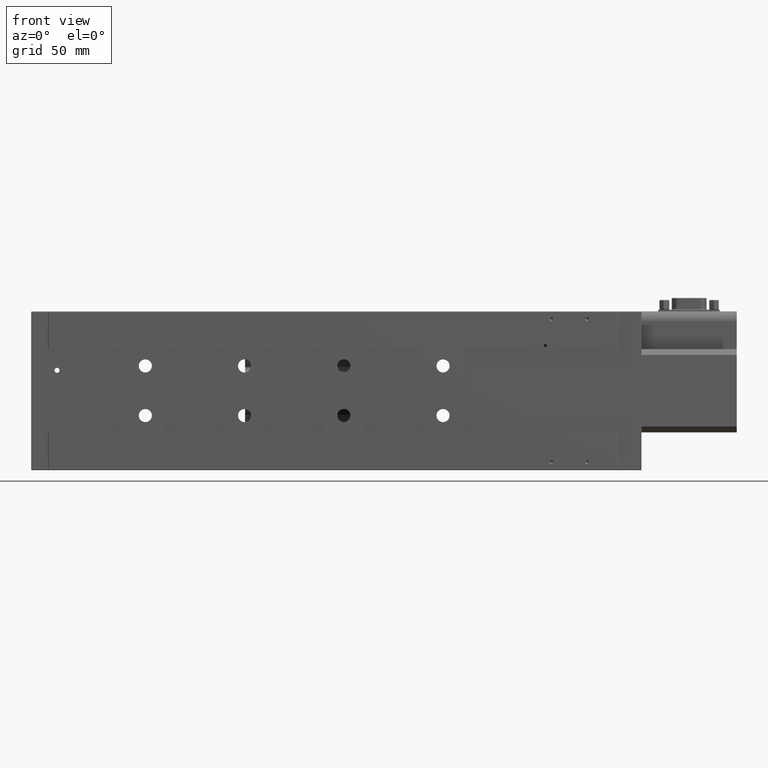
[diagram: clean part render]
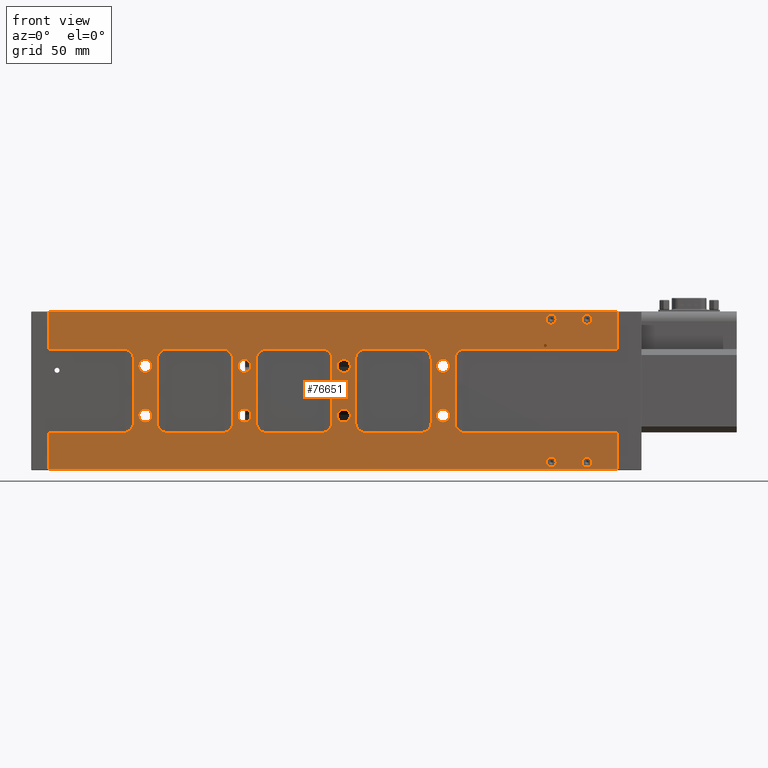
[diagram: same view with one face highlighted and labeled with its STEP entity id]
A machine part, front view. The second image highlights one B-rep face of the part: STEP entity #76651.
In plain terms, the highlighted planar face has unit normal (0, -1, 0).
Its self-contained STEP definition (entity closure, byte-faithful):
#32 = VERTEX_POINT ( 'NONE', #9758 ) ;
#176 = VECTOR ( 'NONE', #108767, 1000.000000000000000 ) ;
#337 = CARTESIAN_POINT ( 'NONE',  ( 107.5000000000000000, -3.081487911019577400E-030, -27.50000000000000000 ) ) ;
#714 = DIRECTION ( 'NONE',  ( 0.0000000000000000000, -0.0000000000000000000, -1.000000000000000000 ) ) ;
#882 = VERTEX_POINT ( 'NONE', #67677 ) ;
#955 = VERTEX_POINT ( 'NONE', #97747 ) ;
#971 = CARTESIAN_POINT ( 'NONE',  ( 168.4999999999999700, -3.081487911019577400E-030, -23.99999999999997900 ) ) ;
#1014 = LINE ( 'NONE', #15958, #30626 ) ;
#1209 = DIRECTION ( 'NONE',  ( 0.0000000000000000000, -1.000000000000000000, 0.0000000000000000000 ) ) ;
#1372 = CIRCLE ( 'NONE', #16752, 3.299999999999997200 ) ;
#2069 = DIRECTION ( 'NONE',  ( 0.0000000000000000000, 0.0000000000000000000, -1.000000000000000000 ) ) ;
#2505 = CARTESIAN_POINT ( 'NONE',  ( 63.50000000000000000, -3.081487911019577400E-030, -19.00000000000000400 ) ) ;
#2922 = CIRCLE ( 'NONE', #86232, 5.000000000000000900 ) ;
#3115 = CARTESIAN_POINT ( 'NONE',  ( 163.5000000000000000, -3.081487911019577400E-030, -23.99999999999997900 ) ) ;
#3352 = VERTEX_POINT ( 'NONE', #28502 ) ;
#3419 = CIRCLE ( 'NONE', #50613, 3.299999999999997200 ) ;
#3466 = VERTEX_POINT ( 'NONE', #87844 ) ;
#3620 = FACE_BOUND ( 'NONE', #116511, .T. ) ;
#3692 = CIRCLE ( 'NONE', #104261, 2.500000000000002200 ) ;
#3763 = EDGE_CURVE ( 'NONE', #55643, #70289, #113387, .T. ) ;
#3909 = CARTESIAN_POINT ( 'NONE',  ( 207.5000000000000300, -3.081487911019577400E-030, -30.79999999999999700 ) ) ;
#4244 = CIRCLE ( 'NONE', #72149, 4.999999999999997300 ) ;
#4245 = EDGE_CURVE ( 'NONE', #12464, #6634, #104402, .T. ) ;
#4493 = LINE ( 'NONE', #100578, #56324 ) ;
#4622 = CARTESIAN_POINT ( 'NONE',  ( 213.5000000000000300, -3.081487911019577400E-030, -61.00000000000002100 ) ) ;
#4814 = CARTESIAN_POINT ( 'NONE',  ( 279.9999999999999400, -2.696301922142130200E-030, -76.00000000000000000 ) ) ;
#5111 = CARTESIAN_POINT ( 'NONE',  ( 279.9999999999999400, -2.696301922142130200E-030, -4.000000000000003600 ) ) ;
#5503 = VECTOR ( 'NONE', #10503, 1000.000000000000000 ) ;
#5555 = AXIS2_PLACEMENT_3D ( 'NONE', #28528, #94088, #56595 ) ;
#6387 = LINE ( 'NONE', #108565, #63991 ) ;
#6406 = ORIENTED_EDGE ( 'NONE', *, *, #65200, .T. ) ;
#6521 = DIRECTION ( 'NONE',  ( 0.0000000000000000000, 0.0000000000000000000, 1.000000000000000000 ) ) ;
#6634 = VERTEX_POINT ( 'NONE', #66663 ) ;
#6667 = VECTOR ( 'NONE', #65018, 1000.000000000000000 ) ;
#6719 = EDGE_CURVE ( 'NONE', #19025, #67144, #122423, .T. ) ;
#6874 = AXIS2_PLACEMENT_3D ( 'NONE', #5111, #71163, #81880 ) ;
#7036 = EDGE_CURVE ( 'NONE', #64838, #38649, #51488, .T. ) ;
#7274 = VERTEX_POINT ( 'NONE', #3909 ) ;
#7400 = EDGE_CURVE ( 'NONE', #112690, #95032, #61620, .T. ) ;
#7713 = VECTOR ( 'NONE', #68785, 1000.000000000000000 ) ;
#7737 = EDGE_CURVE ( 'NONE', #112133, #50079, #23029, .T. ) ;
#8036 = CARTESIAN_POINT ( 'NONE',  ( 168.5000000000000000, -3.081487911019577400E-030, -56.00000000000002100 ) ) ;
#8140 = EDGE_CURVE ( 'NONE', #882, #955, #61270, .T. ) ;
#8500 = LINE ( 'NONE', #104568, #5503 ) ;
#8533 = VERTEX_POINT ( 'NONE', #91515 ) ;
#8903 = CARTESIAN_POINT ( 'NONE',  ( 163.5000000000000000, -3.081487911019577400E-030, -18.99999999999998200 ) ) ;
#9434 = EDGE_CURVE ( 'NONE', #20354, #16555, #27585, .T. ) ;
#9439 = CARTESIAN_POINT ( 'NONE',  ( 151.9999999999999700, -3.081487911019577400E-030, -40.00000000000000000 ) ) ;
#9505 = CARTESIAN_POINT ( 'NONE',  ( 46.49999999999998600, -3.081487911019577400E-030, -61.00000000000002100 ) ) ;
#9560 = CIRCLE ( 'NONE', #68338, 3.299999999999997200 ) ;
#9635 = VERTEX_POINT ( 'NONE', #73068 ) ;
#9758 = CARTESIAN_POINT ( 'NONE',  ( 279.9999999999999400, -2.696301922142130200E-030, -1.500000000000001300 ) ) ;
#10085 = AXIS2_PLACEMENT_3D ( 'NONE', #43215, #15453, #24992 ) ;
#10151 = CARTESIAN_POINT ( 'NONE',  ( 218.5000000000000000, -3.081487911019577400E-030, -23.99999999999996800 ) ) ;
#10186 = EDGE_LOOP ( 'NONE', ( #23263, #108722 ) ) ;
#10446 = VECTOR ( 'NONE', #78032, 1000.000000000000000 ) ;
#10479 = DIRECTION ( 'NONE',  ( 0.0000000000000000000, 0.0000000000000000000, -1.000000000000000000 ) ) ;
#10503 = DIRECTION ( 'NONE',  ( -1.652117596168385800E-016, -0.0000000000000000000, 1.000000000000000000 ) ) ;
#10614 = VERTEX_POINT ( 'NONE', #109845 ) ;
#10752 = CIRCLE ( 'NONE', #115056, 5.000000000000000900 ) ;
#10883 = EDGE_CURVE ( 'NONE', #35135, #99519, #16384, .T. ) ;
#11692 = EDGE_CURVE ( 'NONE', #32, #57868, #94175, .T. ) ;
#11882 = ORIENTED_EDGE ( 'NONE', *, *, #70848, .T. ) ;
#11949 = ORIENTED_EDGE ( 'NONE', *, *, #3763, .F. ) ;
#12322 = EDGE_CURVE ( 'NONE', #3466, #107722, #60713, .T. ) ;
#12431 = DIRECTION ( 'NONE',  ( -0.0000000000000000000, 1.000000000000000000, -0.0000000000000000000 ) ) ;
#12464 = VERTEX_POINT ( 'NONE', #87912 ) ;
#12487 = FACE_BOUND ( 'NONE', #76839, .T. ) ;
#12796 = EDGE_LOOP ( 'NONE', ( #84512, #78862, #88332, #13987, #26525, #24092, #91513, #76817, #102276, #56945, #79590, #55205, #110182, #14857, #64088, #20058 ) ) ;
#12814 = EDGE_LOOP ( 'NONE', ( #43060, #6406 ) ) ;
#13129 = EDGE_CURVE ( 'NONE', #51718, #108648, #102489, .T. ) ;
#13242 = ORIENTED_EDGE ( 'NONE', *, *, #61814, .F. ) ;
#13318 = DIRECTION ( 'NONE',  ( 0.0000000000000000000, 0.0000000000000000000, -1.000000000000000000 ) ) ;
#13711 = VERTEX_POINT ( 'NONE', #106581 ) ;
#13987 = ORIENTED_EDGE ( 'NONE', *, *, #120305, .T. ) ;
#14516 = DIRECTION ( 'NONE',  ( -0.0000000000000000000, 0.0000000000000000000, 1.000000000000000000 ) ) ;
#14815 = VERTEX_POINT ( 'NONE', #44836 ) ;
#14822 = CARTESIAN_POINT ( 'NONE',  ( 295.1999999999999900, -3.081487911019577400E-030, -0.3000000000000502300 ) ) ;
#14857 = ORIENTED_EDGE ( 'NONE', *, *, #54749, .T. ) ;
#15453 = DIRECTION ( 'NONE',  ( -0.0000000000000000000, -1.000000000000000000, -0.0000000000000000000 ) ) ;
#15563 = CARTESIAN_POINT ( 'NONE',  ( 107.5000000000000000, -3.081487911019577400E-030, -52.50000000000000700 ) ) ;
#15588 = DIRECTION ( 'NONE',  ( -1.000000000000000000, -0.0000000000000000000, -2.538619720941669400E-016 ) ) ;
#15629 = ORIENTED_EDGE ( 'NONE', *, *, #102373, .F. ) ;
#15958 = CARTESIAN_POINT ( 'NONE',  ( 151.5000000000000000, -3.081487911019577400E-030, -18.99999999999998200 ) ) ;
#15995 = DIRECTION ( 'NONE',  ( 0.0000000000000000000, 0.0000000000000000000, 1.000000000000000000 ) ) ;
#16160 = LINE ( 'NONE', #63891, #39937 ) ;
#16224 = DIRECTION ( 'NONE',  ( 0.0000000000000000000, 0.0000000000000000000, -1.000000000000000000 ) ) ;
#16307 = AXIS2_PLACEMENT_3D ( 'NONE', #15563, #34241, #15995 ) ;
#16384 = LINE ( 'NONE', #2505, #10446 ) ;
#16420 = VERTEX_POINT ( 'NONE', #86547 ) ;
#16470 = AXIS2_PLACEMENT_3D ( 'NONE', #94926, #1209, #20249 ) ;
#16555 = VERTEX_POINT ( 'NONE', #111572 ) ;
#16752 = AXIS2_PLACEMENT_3D ( 'NONE', #72140, #89957, #52844 ) ;
#17136 = CARTESIAN_POINT ( 'NONE',  ( 101.5000000000000000, -3.081487911019577400E-030, -18.99999999999999600 ) ) ;
#17176 = VERTEX_POINT ( 'NONE', #121459 ) ;
#17641 = VECTOR ( 'NONE', #102099, 1000.000000000000000 ) ;
#18272 = DIRECTION ( 'NONE',  ( -0.0000000000000000000, -1.000000000000000000, -0.0000000000000000000 ) ) ;
#18378 = VERTEX_POINT ( 'NONE', #74505 ) ;
#18584 = CARTESIAN_POINT ( 'NONE',  ( 118.5000000000000000, -3.081487911019577400E-030, -56.00000000000002100 ) ) ;
#18766 = ORIENTED_EDGE ( 'NONE', *, *, #112097, .T. ) ;
#18859 = EDGE_CURVE ( 'NONE', #67993, #59374, #42636, .T. ) ;
#18876 = DIRECTION ( 'NONE',  ( -0.0000000000000000000, 1.000000000000000000, -0.0000000000000000000 ) ) ;
#19025 = VERTEX_POINT ( 'NONE', #94129 ) ;
#19139 = LINE ( 'NONE', #90196, #109109 ) ;
#19215 = CARTESIAN_POINT ( 'NONE',  ( 46.49999999999998600, -3.081487911019577400E-030, -24.00000000000000700 ) ) ;
#19270 = EDGE_CURVE ( 'NONE', #59374, #67993, #63797, .T. ) ;
#19525 = CARTESIAN_POINT ( 'NONE',  ( 261.9999999999999400, -2.696301922142130200E-030, -73.50000000000001400 ) ) ;
#19855 = AXIS2_PLACEMENT_3D ( 'NONE', #72353, #27872, #93829 ) ;
#20058 = ORIENTED_EDGE ( 'NONE', *, *, #47858, .T. ) ;
#20201 = EDGE_LOOP ( 'NONE', ( #81520, #84561 ) ) ;
#20249 = DIRECTION ( 'NONE',  ( 0.0000000000000000000, 0.0000000000000000000, -1.000000000000000000 ) ) ;
#20354 = VERTEX_POINT ( 'NONE', #30390 ) ;
#20518 = VERTEX_POINT ( 'NONE', #93825 ) ;
#20584 = ORIENTED_EDGE ( 'NONE', *, *, #63654, .T. ) ;
#20638 = AXIS2_PLACEMENT_3D ( 'NONE', #65055, #105800, #52199 ) ;
#21118 = DIRECTION ( 'NONE',  ( 1.000000000000000000, 0.0000000000000000000, 0.0000000000000000000 ) ) ;
#21242 = DIRECTION ( 'NONE',  ( -0.0000000000000000000, 1.000000000000000000, -0.0000000000000000000 ) ) ;
#21435 = FACE_BOUND ( 'NONE', #108002, .T. ) ;
#21753 = CIRCLE ( 'NONE', #112318, 2.500000000000002200 ) ;
#22153 = VERTEX_POINT ( 'NONE', #47667 ) ;
#22325 = ORIENTED_EDGE ( 'NONE', *, *, #23351, .T. ) ;
#22654 = CARTESIAN_POINT ( 'NONE',  ( 57.49999999999999300, -3.081487911019577400E-030, -24.20000000000000300 ) ) ;
#22799 = DIRECTION ( 'NONE',  ( 0.0000000000000000000, 0.0000000000000000000, -1.000000000000000000 ) ) ;
#23029 = CIRCLE ( 'NONE', #99037, 3.299999999999997200 ) ;
#23263 = ORIENTED_EDGE ( 'NONE', *, *, #19270, .T. ) ;
#23351 = EDGE_CURVE ( 'NONE', #67144, #19025, #74141, .T. ) ;
#23662 = CARTESIAN_POINT ( 'NONE',  ( 51.49999999999999300, -3.081487911019577400E-030, -19.00000000000000700 ) ) ;
#23747 = ORIENTED_EDGE ( 'NONE', *, *, #49993, .F. ) ;
#24048 = VECTOR ( 'NONE', #26350, 1000.000000000000000 ) ;
#24092 = ORIENTED_EDGE ( 'NONE', *, *, #32023, .T. ) ;
#24179 = CARTESIAN_POINT ( 'NONE',  ( 213.5000000000000000, -3.081487911019577400E-030, -23.99999999999996800 ) ) ;
#24273 = VECTOR ( 'NONE', #47527, 1000.000000000000000 ) ;
#24676 = DIRECTION ( 'NONE',  ( -0.0000000000000000000, -1.000000000000000000, -0.0000000000000000000 ) ) ;
#24781 = EDGE_CURVE ( 'NONE', #37035, #116259, #9560, .T. ) ;
#24992 = DIRECTION ( 'NONE',  ( 0.0000000000000000000, 0.0000000000000000000, -1.000000000000000000 ) ) ;
#25074 = CARTESIAN_POINT ( 'NONE',  ( 68.50000000000000000, -3.081487911019577400E-030, -61.00000000000002100 ) ) ;
#26350 = DIRECTION ( 'NONE',  ( 0.0000000000000000000, 0.0000000000000000000, 1.000000000000000000 ) ) ;
#26505 = CIRCLE ( 'NONE', #118044, 3.299999999999997200 ) ;
#26525 = ORIENTED_EDGE ( 'NONE', *, *, #103327, .F. ) ;
#26658 = DIRECTION ( 'NONE',  ( 0.0000000000000000000, 0.0000000000000000000, -1.000000000000000000 ) ) ;
#26813 = ORIENTED_EDGE ( 'NONE', *, *, #117027, .F. ) ;
#27222 = CIRCLE ( 'NONE', #46512, 5.000000000000000900 ) ;
#27309 = LINE ( 'NONE', #8903, #49518 ) ;
#27359 = EDGE_CURVE ( 'NONE', #116259, #37035, #65189, .T. ) ;
#27585 = CIRCLE ( 'NONE', #49642, 5.000000000000000900 ) ;
#27786 = CARTESIAN_POINT ( 'NONE',  ( 51.49999999999999300, -3.081487911019577400E-030, -24.00000000000000700 ) ) ;
#27872 = DIRECTION ( 'NONE',  ( -0.0000000000000000000, 1.000000000000000000, -0.0000000000000000000 ) ) ;
#27939 = DIRECTION ( 'NONE',  ( 1.239088197126289600E-016, 0.0000000000000000000, -1.000000000000000000 ) ) ;
#27984 = CARTESIAN_POINT ( 'NONE',  ( 279.9999999999999400, -2.696301922142130200E-030, -6.500000000000005300 ) ) ;
#27987 = EDGE_CURVE ( 'NONE', #101148, #87421, #16160, .T. ) ;
#28355 = DIRECTION ( 'NONE',  ( 0.0000000000000000000, 0.0000000000000000000, -1.000000000000000000 ) ) ;
#28502 = CARTESIAN_POINT ( 'NONE',  ( 8.800000000000029100, -3.081487911019577400E-030, -0.3000000000000502300 ) ) ;
#28528 = CARTESIAN_POINT ( 'NONE',  ( 259.0000000000000000, -3.081487911019577400E-030, -17.29999999999999700 ) ) ;
#28693 = LINE ( 'NONE', #56929, #24273 ) ;
#28715 = AXIS2_PLACEMENT_3D ( 'NONE', #95472, #114409, #39435 ) ;
#28964 = CARTESIAN_POINT ( 'NONE',  ( 157.5000000000000000, -3.081487911019577400E-030, -30.79999999999999700 ) ) ;
#29003 = CARTESIAN_POINT ( 'NONE',  ( 196.5000000000000000, -3.081487911019577400E-030, -56.00000000000002100 ) ) ;
#29036 = ORIENTED_EDGE ( 'NONE', *, *, #34611, .F. ) ;
#29072 = CIRCLE ( 'NONE', #81997, 5.000000000000000900 ) ;
#29288 = VERTEX_POINT ( 'NONE', #25074 ) ;
#29358 = VERTEX_POINT ( 'NONE', #45777 ) ;
#29457 = VECTOR ( 'NONE', #102482, 1000.000000000000000 ) ;
#30097 = CIRCLE ( 'NONE', #10085, 2.499999999999988500 ) ;
#30291 = DIRECTION ( 'NONE',  ( 0.0000000000000000000, 0.0000000000000000000, 1.000000000000000000 ) ) ;
#30390 = CARTESIAN_POINT ( 'NONE',  ( 196.5000000000000000, -3.081487911019577400E-030, -18.99999999999997200 ) ) ;
#30531 = DIRECTION ( 'NONE',  ( -0.0000000000000000000, -1.000000000000000000, -0.0000000000000000000 ) ) ;
#30626 = VECTOR ( 'NONE', #40816, 1000.000000000000000 ) ;
#31076 = CARTESIAN_POINT ( 'NONE',  ( 146.5000000000000000, -3.081487911019577400E-030, -23.99999999999998200 ) ) ;
#31200 = CARTESIAN_POINT ( 'NONE',  ( 57.49999999999999300, -3.081487911019577400E-030, -55.80000000000000400 ) ) ;
#32023 = EDGE_CURVE ( 'NONE', #104747, #38649, #29072, .T. ) ;
#32392 = CARTESIAN_POINT ( 'NONE',  ( 261.9999999999999400, -2.696301922142130200E-030, -4.000000000000003600 ) ) ;
#34241 = DIRECTION ( 'NONE',  ( -0.0000000000000000000, 1.000000000000000000, -0.0000000000000000000 ) ) ;
#34492 = ORIENTED_EDGE ( 'NONE', *, *, #13129, .F. ) ;
#34611 = EDGE_CURVE ( 'NONE', #14815, #955, #65789, .T. ) ;
#34746 = FACE_BOUND ( 'NONE', #72532, .T. ) ;
#34937 = CARTESIAN_POINT ( 'NONE',  ( 279.9999999999999400, -2.696301922142130200E-030, -78.50000000000000000 ) ) ;
#34994 = CIRCLE ( 'NONE', #120372, 2.500000000000002200 ) ;
#35014 = AXIS2_PLACEMENT_3D ( 'NONE', #67506, #76976, #66302 ) ;
#35135 = VERTEX_POINT ( 'NONE', #121445 ) ;
#35159 = VECTOR ( 'NONE', #104521, 1000.000000000000000 ) ;
#35654 = CARTESIAN_POINT ( 'NONE',  ( 57.49999999999999300, -3.081487911019577400E-030, -27.50000000000000000 ) ) ;
#35741 = LINE ( 'NONE', #52405, #176 ) ;
#36165 = ORIENTED_EDGE ( 'NONE', *, *, #24781, .T. ) ;
#36838 = DIRECTION ( 'NONE',  ( -1.000000000000000000, 0.0000000000000000000, 0.0000000000000000000 ) ) ;
#37035 = VERTEX_POINT ( 'NONE', #42242 ) ;
#37458 = VERTEX_POINT ( 'NONE', #80344 ) ;
#37809 = ORIENTED_EDGE ( 'NONE', *, *, #56983, .T. ) ;
#37852 = DIRECTION ( 'NONE',  ( -0.0000000000000000000, 1.000000000000000000, -0.0000000000000000000 ) ) ;
#38546 = DIRECTION ( 'NONE',  ( -0.0000000000000000000, 1.000000000000000000, -0.0000000000000000000 ) ) ;
#38649 = VERTEX_POINT ( 'NONE', #47598 ) ;
#38763 = CARTESIAN_POINT ( 'NONE',  ( 8.500000000000007100, -3.081487911019577400E-030, -61.00000000000002100 ) ) ;
#38982 = EDGE_CURVE ( 'NONE', #7274, #96764, #1372, .T. ) ;
#39435 = DIRECTION ( 'NONE',  ( 0.0000000000000000000, 0.0000000000000000000, -1.000000000000000000 ) ) ;
#39446 = DIRECTION ( 'NONE',  ( -0.0000000000000000000, 1.000000000000000000, -0.0000000000000000000 ) ) ;
#39749 = EDGE_LOOP ( 'NONE', ( #63158, #37809 ) ) ;
#39937 = VECTOR ( 'NONE', #101389, 1000.000000000000000 ) ;
#39981 = EDGE_CURVE ( 'NONE', #102194, #99304, #64473, .T. ) ;
#40695 = CARTESIAN_POINT ( 'NONE',  ( 8.800000000000029100, -3.081487911019577400E-030, -19.00000000000001800 ) ) ;
#40816 = DIRECTION ( 'NONE',  ( -8.260587980841931400E-017, 0.0000000000000000000, 1.000000000000000000 ) ) ;
#41106 = EDGE_LOOP ( 'NONE', ( #118695, #18766, #23747, #11882, #34492, #45393, #87961, #86300 ) ) ;
#41726 = ORIENTED_EDGE ( 'NONE', *, *, #45774, .T. ) ;
#42242 = CARTESIAN_POINT ( 'NONE',  ( 157.5000000000000000, -3.081487911019577400E-030, -24.20000000000000300 ) ) ;
#42348 = VERTEX_POINT ( 'NONE', #19525 ) ;
#42476 = DIRECTION ( 'NONE',  ( 0.0000000000000000000, 0.0000000000000000000, -1.000000000000000000 ) ) ;
#42558 = ORIENTED_EDGE ( 'NONE', *, *, #80638, .T. ) ;
#42636 = CIRCLE ( 'NONE', #92558, 3.299999999999997200 ) ;
#43060 = ORIENTED_EDGE ( 'NONE', *, *, #85927, .T. ) ;
#43215 = CARTESIAN_POINT ( 'NONE',  ( 261.9999999999999400, -2.696301922142130200E-030, -76.00000000000000000 ) ) ;
#44248 = CARTESIAN_POINT ( 'NONE',  ( 113.4999999999999900, -3.081487911019577400E-030, -18.99999999999998900 ) ) ;
#44414 = CARTESIAN_POINT ( 'NONE',  ( 68.50000000000000000, -3.081487911019577400E-030, -56.00000000000002100 ) ) ;
#44457 = CARTESIAN_POINT ( 'NONE',  ( 57.49999999999999300, -3.081487911019577400E-030, -52.50000000000000700 ) ) ;
#44757 = DIRECTION ( 'NONE',  ( -0.0000000000000000000, 1.000000000000000000, -0.0000000000000000000 ) ) ;
#44823 = EDGE_CURVE ( 'NONE', #42348, #8533, #106621, .T. ) ;
#44836 = CARTESIAN_POINT ( 'NONE',  ( 101.5000000000000000, -3.081487911019577400E-030, -56.00000000000001400 ) ) ;
#44974 = CARTESIAN_POINT ( 'NONE',  ( 57.49999999999999300, -3.081487911019577400E-030, -52.50000000000000700 ) ) ;
#44983 = CARTESIAN_POINT ( 'NONE',  ( 295.1999999999999900, -3.081487911019577400E-030, 0.0000000000000000000 ) ) ;
#45370 = DIRECTION ( 'NONE',  ( 0.0000000000000000000, 0.0000000000000000000, 1.000000000000000000 ) ) ;
#45393 = ORIENTED_EDGE ( 'NONE', *, *, #63020, .T. ) ;
#45488 = EDGE_CURVE ( 'NONE', #35135, #50527, #2922, .T. ) ;
#45774 = EDGE_CURVE ( 'NONE', #29288, #99519, #4244, .T. ) ;
#45777 = CARTESIAN_POINT ( 'NONE',  ( 51.49999999999999300, -3.081487911019577400E-030, -56.00000000000002100 ) ) ;
#45813 = LINE ( 'NONE', #83127, #17641 ) ;
#46036 = VERTEX_POINT ( 'NONE', #14822 ) ;
#46107 = EDGE_CURVE ( 'NONE', #95032, #112690, #26505, .T. ) ;
#46500 = VECTOR ( 'NONE', #105889, 1000.000000000000000 ) ;
#46512 = AXIS2_PLACEMENT_3D ( 'NONE', #971, #76509, #93488 ) ;
#46596 = AXIS2_PLACEMENT_3D ( 'NONE', #95888, #39446, #76483 ) ;
#46641 = FACE_BOUND ( 'NONE', #57218, .T. ) ;
#47153 = DIRECTION ( 'NONE',  ( -0.0000000000000000000, 1.000000000000000000, -0.0000000000000000000 ) ) ;
#47527 = DIRECTION ( 'NONE',  ( -1.000000000000000000, -0.0000000000000000000, -1.826024711554533900E-016 ) ) ;
#47598 = CARTESIAN_POINT ( 'NONE',  ( 218.5000000000000000, -3.081487911019577400E-030, -18.99999999999996800 ) ) ;
#47667 = CARTESIAN_POINT ( 'NONE',  ( 96.50000000000000000, -3.081487911019577400E-030, -61.00000000000002100 ) ) ;
#47740 = EDGE_CURVE ( 'NONE', #20518, #37458, #35741, .T. ) ;
#47775 = CARTESIAN_POINT ( 'NONE',  ( 213.5000000000000300, -3.081487911019577400E-030, -56.00000000000001400 ) ) ;
#47858 = EDGE_CURVE ( 'NONE', #102194, #79104, #4493, .T. ) ;
#48631 = EDGE_CURVE ( 'NONE', #20354, #75919, #63168, .T. ) ;
#48717 = CARTESIAN_POINT ( 'NONE',  ( 46.49999999999998600, -3.081487911019577400E-030, -19.00000000000000700 ) ) ;
#48892 = ORIENTED_EDGE ( 'NONE', *, *, #61137, .F. ) ;
#48899 = CARTESIAN_POINT ( 'NONE',  ( 63.50000000000000000, -3.081487911019577400E-030, -61.00000000000002100 ) ) ;
#49125 = ORIENTED_EDGE ( 'NONE', *, *, #91145, .F. ) ;
#49261 = LINE ( 'NONE', #44983, #24048 ) ;
#49518 = VECTOR ( 'NONE', #27939, 1000.000000000000000 ) ;
#49642 = AXIS2_PLACEMENT_3D ( 'NONE', #61566, #12431, #22799 ) ;
#49645 = CARTESIAN_POINT ( 'NONE',  ( 157.5000000000000000, -3.081487911019577400E-030, -52.50000000000000700 ) ) ;
#49993 = EDGE_CURVE ( 'NONE', #9635, #55149, #1014, .T. ) ;
#50079 = VERTEX_POINT ( 'NONE', #110770 ) ;
#50359 = CARTESIAN_POINT ( 'NONE',  ( 279.9999999999999400, -2.696301922142130200E-030, -4.000000000000003600 ) ) ;
#50418 = VERTEX_POINT ( 'NONE', #82255 ) ;
#50527 = VERTEX_POINT ( 'NONE', #112261 ) ;
#50536 = EDGE_CURVE ( 'NONE', #86927, #13711, #34994, .T. ) ;
#50613 = AXIS2_PLACEMENT_3D ( 'NONE', #49645, #79198, #77974 ) ;
#50715 = CARTESIAN_POINT ( 'NONE',  ( 157.5000000000000000, -3.081487911019577400E-030, -27.50000000000000000 ) ) ;
#50745 = LINE ( 'NONE', #92836, #84665 ) ;
#50962 = ORIENTED_EDGE ( 'NONE', *, *, #46107, .T. ) ;
#51488 = LINE ( 'NONE', #119162, #120795 ) ;
#51526 = DIRECTION ( 'NONE',  ( -0.0000000000000000000, 1.000000000000000000, -0.0000000000000000000 ) ) ;
#51587 = ORIENTED_EDGE ( 'NONE', *, *, #7400, .T. ) ;
#51718 = VERTEX_POINT ( 'NONE', #101095 ) ;
#51933 = CARTESIAN_POINT ( 'NONE',  ( 295.1999999999999900, -3.081487911019577400E-030, -18.99999999999994700 ) ) ;
#52199 = DIRECTION ( 'NONE',  ( 0.0000000000000000000, 0.0000000000000000000, 1.000000000000000000 ) ) ;
#52208 = DIRECTION ( 'NONE',  ( 1.000000000000000000, 0.0000000000000000000, 0.0000000000000000000 ) ) ;
#52292 = DIRECTION ( 'NONE',  ( 0.0000000000000000000, 0.0000000000000000000, 1.000000000000000000 ) ) ;
#52405 = CARTESIAN_POINT ( 'NONE',  ( 113.4999999999999900, -3.081487911019577400E-030, -18.99999999999998900 ) ) ;
#52844 = DIRECTION ( 'NONE',  ( 0.0000000000000000000, 0.0000000000000000000, 1.000000000000000000 ) ) ;
#52941 = CIRCLE ( 'NONE', #78181, 3.299999999999997200 ) ;
#52996 = ORIENTED_EDGE ( 'NONE', *, *, #50536, .F. ) ;
#53060 = EDGE_CURVE ( 'NONE', #79104, #107276, #45813, .T. ) ;
#53479 = CARTESIAN_POINT ( 'NONE',  ( 196.5000000000000000, -3.081487911019577400E-030, -61.00000000000002100 ) ) ;
#53517 = AXIS2_PLACEMENT_3D ( 'NONE', #81837, #54650, #16224 ) ;
#53971 = AXIS2_PLACEMENT_3D ( 'NONE', #80793, #118715, #117895 ) ;
#54053 = AXIS2_PLACEMENT_3D ( 'NONE', #32392, #99171, #13318 ) ;
#54116 = DIRECTION ( 'NONE',  ( 0.0000000000000000000, 0.0000000000000000000, -1.000000000000000000 ) ) ;
#54650 = DIRECTION ( 'NONE',  ( -0.0000000000000000000, 1.000000000000000000, -0.0000000000000000000 ) ) ;
#54749 = EDGE_CURVE ( 'NONE', #29358, #99304, #93752, .T. ) ;
#55149 = VERTEX_POINT ( 'NONE', #62926 ) ;
#55205 = ORIENTED_EDGE ( 'NONE', *, *, #111400, .T. ) ;
#55643 = VERTEX_POINT ( 'NONE', #61544 ) ;
#55744 = DIRECTION ( 'NONE',  ( -0.0000000000000000000, -1.000000000000000000, -0.0000000000000000000 ) ) ;
#55775 = DIRECTION ( 'NONE',  ( 0.0000000000000000000, 0.0000000000000000000, -1.000000000000000000 ) ) ;
#56152 = DIRECTION ( 'NONE',  ( 0.0000000000000000000, 0.0000000000000000000, 1.000000000000000000 ) ) ;
#56324 = VECTOR ( 'NONE', #71300, 1000.000000000000000 ) ;
#56345 = EDGE_CURVE ( 'NONE', #29288, #22153, #120392, .T. ) ;
#56551 = DIRECTION ( 'NONE',  ( -0.0000000000000000000, 1.000000000000000000, -0.0000000000000000000 ) ) ;
#56595 = DIRECTION ( 'NONE',  ( 0.0000000000000000000, 0.0000000000000000000, -1.000000000000000000 ) ) ;
#56866 = FACE_BOUND ( 'NONE', #41106, .T. ) ;
#56929 = CARTESIAN_POINT ( 'NONE',  ( 63.50000000000000000, -3.081487911019577400E-030, -19.00000000000000400 ) ) ;
#56945 = ORIENTED_EDGE ( 'NONE', *, *, #67244, .T. ) ;
#56983 = EDGE_CURVE ( 'NONE', #66852, #17176, #75677, .T. ) ;
#57020 = EDGE_CURVE ( 'NONE', #64838, #46036, #49261, .T. ) ;
#57218 = EDGE_LOOP ( 'NONE', ( #36165, #118826 ) ) ;
#57527 = CARTESIAN_POINT ( 'NONE',  ( 157.5000000000000000, -3.081487911019577400E-030, -52.50000000000000700 ) ) ;
#57868 = VERTEX_POINT ( 'NONE', #27984 ) ;
#58083 = CARTESIAN_POINT ( 'NONE',  ( 107.5000000000000000, -3.081487911019577400E-030, -55.80000000000000400 ) ) ;
#58792 = CARTESIAN_POINT ( 'NONE',  ( 107.5000000000000000, -3.081487911019577400E-030, -27.50000000000000000 ) ) ;
#58836 = ORIENTED_EDGE ( 'NONE', *, *, #92906, .F. ) ;
#58963 = DIRECTION ( 'NONE',  ( 0.0000000000000000000, 0.0000000000000000000, -1.000000000000000000 ) ) ;
#59374 = VERTEX_POINT ( 'NONE', #22654 ) ;
#60713 = CIRCLE ( 'NONE', #16470, 0.7507161552948449200 ) ;
#60884 = LINE ( 'NONE', #114612, #7713 ) ;
#60990 = DIRECTION ( 'NONE',  ( -0.0000000000000000000, -1.000000000000000000, -0.0000000000000000000 ) ) ;
#61064 = AXIS2_PLACEMENT_3D ( 'NONE', #337, #47153, #74697 ) ;
#61137 = EDGE_CURVE ( 'NONE', #13711, #86927, #21753, .T. ) ;
#61270 = CIRCLE ( 'NONE', #70649, 5.000000000000000900 ) ;
#61473 = CARTESIAN_POINT ( 'NONE',  ( 57.49999999999999300, -3.081487911019577400E-030, -27.50000000000000000 ) ) ;
#61544 = CARTESIAN_POINT ( 'NONE',  ( 261.9999999999999400, -2.696301922142130200E-030, -6.499999999999992000 ) ) ;
#61566 = CARTESIAN_POINT ( 'NONE',  ( 196.5000000000000000, -3.081487911019577400E-030, -23.99999999999997200 ) ) ;
#61620 = CIRCLE ( 'NONE', #84066, 3.299999999999997200 ) ;
#61814 = EDGE_CURVE ( 'NONE', #70289, #55643, #114402, .T. ) ;
#61820 = VECTOR ( 'NONE', #117258, 1000.000000000000000 ) ;
#61982 = ORIENTED_EDGE ( 'NONE', *, *, #44823, .F. ) ;
#62158 = AXIS2_PLACEMENT_3D ( 'NONE', #18584, #103553, #121726 ) ;
#62299 = ORIENTED_EDGE ( 'NONE', *, *, #76704, .F. ) ;
#62428 = VERTEX_POINT ( 'NONE', #53479 ) ;
#62541 = CARTESIAN_POINT ( 'NONE',  ( 207.5000000000000300, -3.081487911019577400E-030, -55.80000000000000400 ) ) ;
#62745 = EDGE_LOOP ( 'NONE', ( #26813, #61982 ) ) ;
#62757 = FACE_BOUND ( 'NONE', #20201, .T. ) ;
#62923 = CIRCLE ( 'NONE', #120839, 4.999999999999997300 ) ;
#62926 = CARTESIAN_POINT ( 'NONE',  ( 151.5000000000000000, -3.081487911019577400E-030, -23.99999999999998200 ) ) ;
#63020 = EDGE_CURVE ( 'NONE', #51718, #37458, #99678, .T. ) ;
#63118 = DIRECTION ( 'NONE',  ( -0.0000000000000000000, 1.000000000000000000, -0.0000000000000000000 ) ) ;
#63158 = ORIENTED_EDGE ( 'NONE', *, *, #84772, .T. ) ;
#63165 = ORIENTED_EDGE ( 'NONE', *, *, #113127, .T. ) ;
#63168 = LINE ( 'NONE', #95045, #35159 ) ;
#63260 = DIRECTION ( 'NONE',  ( 0.0000000000000000000, 0.0000000000000000000, 1.000000000000000000 ) ) ;
#63359 = DIRECTION ( 'NONE',  ( 0.0000000000000000000, 0.0000000000000000000, 1.000000000000000000 ) ) ;
#63397 = ORIENTED_EDGE ( 'NONE', *, *, #9434, .T. ) ;
#63467 = CARTESIAN_POINT ( 'NONE',  ( 261.9999999999999400, -2.696301922142130200E-030, -4.000000000000003600 ) ) ;
#63654 = EDGE_CURVE ( 'NONE', #14815, #22153, #80137, .T. ) ;
#63797 = CIRCLE ( 'NONE', #76818, 3.299999999999997200 ) ;
#63874 = CARTESIAN_POINT ( 'NONE',  ( 261.9999999999999400, -2.696301922142130200E-030, -1.500000000000015100 ) ) ;
#63891 = CARTESIAN_POINT ( 'NONE',  ( 8.500000000000007100, -3.081487911019577400E-030, -19.00000000000001800 ) ) ;
#63991 = VECTOR ( 'NONE', #52208, 1000.000000000000000 ) ;
#64088 = ORIENTED_EDGE ( 'NONE', *, *, #39981, .F. ) ;
#64110 = DIRECTION ( 'NONE',  ( 0.0000000000000000000, 0.0000000000000000000, -1.000000000000000000 ) ) ;
#64473 = LINE ( 'NONE', #38763, #96855 ) ;
#64838 = VERTEX_POINT ( 'NONE', #51933 ) ;
#65018 = DIRECTION ( 'NONE',  ( -1.652117596168386800E-016, 0.0000000000000000000, 1.000000000000000000 ) ) ;
#65050 = VERTEX_POINT ( 'NONE', #47775 ) ;
#65055 = CARTESIAN_POINT ( 'NONE',  ( 207.5000000000000300, -3.081487911019577400E-030, -52.50000000000000700 ) ) ;
#65189 = CIRCLE ( 'NONE', #70230, 3.299999999999997200 ) ;
#65200 = EDGE_CURVE ( 'NONE', #105280, #16420, #102655, .T. ) ;
#65789 = LINE ( 'NONE', #17136, #6667 ) ;
#65885 = DIRECTION ( 'NONE',  ( 0.0000000000000000000, 0.0000000000000000000, -1.000000000000000000 ) ) ;
#66302 = DIRECTION ( 'NONE',  ( 0.0000000000000000000, 0.0000000000000000000, -1.000000000000000000 ) ) ;
#66663 = CARTESIAN_POINT ( 'NONE',  ( 118.5000000000000000, -3.081487911019577400E-030, -18.99999999999998900 ) ) ;
#66852 = VERTEX_POINT ( 'NONE', #58083 ) ;
#67095 = EDGE_CURVE ( 'NONE', #107276, #108086, #19139, .T. ) ;
#67144 = VERTEX_POINT ( 'NONE', #62541 ) ;
#67244 = EDGE_CURVE ( 'NONE', #3352, #87421, #104702, .T. ) ;
#67365 = DIRECTION ( 'NONE',  ( -0.0000000000000000000, 1.000000000000000000, -0.0000000000000000000 ) ) ;
#67506 = CARTESIAN_POINT ( 'NONE',  ( 46.49999999999998600, -3.081487911019577400E-030, -56.00000000000002100 ) ) ;
#67677 = CARTESIAN_POINT ( 'NONE',  ( 96.50000000000000000, -3.081487911019577400E-030, -18.99999999999999600 ) ) ;
#67993 = VERTEX_POINT ( 'NONE', #96432 ) ;
#68338 = AXIS2_PLACEMENT_3D ( 'NONE', #50715, #51526, #117431 ) ;
#68723 = CARTESIAN_POINT ( 'NONE',  ( 113.5000000000000000, -3.081487911019577400E-030, -61.00000000000002100 ) ) ;
#68785 = DIRECTION ( 'NONE',  ( 1.652117596168385800E-016, 0.0000000000000000000, -1.000000000000000000 ) ) ;
#69552 = CARTESIAN_POINT ( 'NONE',  ( 168.5000000000000000, -3.081487911019577400E-030, -61.00000000000002100 ) ) ;
#69841 = VECTOR ( 'NONE', #14516, 1000.000000000000000 ) ;
#70200 = ORIENTED_EDGE ( 'NONE', *, *, #8140, .T. ) ;
#70230 = AXIS2_PLACEMENT_3D ( 'NONE', #80688, #99664, #52292 ) ;
#70289 = VERTEX_POINT ( 'NONE', #63874 ) ;
#70649 = AXIS2_PLACEMENT_3D ( 'NONE', #113425, #75507, #55775 ) ;
#70848 = EDGE_CURVE ( 'NONE', #9635, #108648, #76439, .T. ) ;
#70916 = ORIENTED_EDGE ( 'NONE', *, *, #10883, .F. ) ;
#71163 = DIRECTION ( 'NONE',  ( -0.0000000000000000000, -1.000000000000000000, -0.0000000000000000000 ) ) ;
#71300 = DIRECTION ( 'NONE',  ( 0.0000000000000000000, 0.0000000000000000000, -1.000000000000000000 ) ) ;
#71507 = ORIENTED_EDGE ( 'NONE', *, *, #12322, .F. ) ;
#71602 = FACE_BOUND ( 'NONE', #109664, .T. ) ;
#72140 = CARTESIAN_POINT ( 'NONE',  ( 207.5000000000000300, -3.081487911019577400E-030, -27.50000000000000000 ) ) ;
#72143 = VERTEX_POINT ( 'NONE', #3115 ) ;
#72149 = AXIS2_PLACEMENT_3D ( 'NONE', #44414, #109837, #92167 ) ;
#72353 = CARTESIAN_POINT ( 'NONE',  ( 146.5000000000000000, -3.081487911019577400E-030, -56.00000000000001400 ) ) ;
#72497 = CIRCLE ( 'NONE', #95860, 4.999999999999997300 ) ;
#72532 = EDGE_LOOP ( 'NONE', ( #49125, #73271 ) ) ;
#73068 = CARTESIAN_POINT ( 'NONE',  ( 151.5000000000000000, -3.081487911019577400E-030, -56.00000000000001400 ) ) ;
#73215 = CARTESIAN_POINT ( 'NONE',  ( 8.800000000000029100, -3.081487911019577400E-030, -19.00000000000001800 ) ) ;
#73217 = DIRECTION ( 'NONE',  ( -0.0000000000000000000, 1.000000000000000000, -0.0000000000000000000 ) ) ;
#73271 = ORIENTED_EDGE ( 'NONE', *, *, #11692, .F. ) ;
#73379 = CARTESIAN_POINT ( 'NONE',  ( 207.5000000000000300, -3.081487911019577400E-030, -27.50000000000000000 ) ) ;
#74141 = CIRCLE ( 'NONE', #53971, 3.299999999999997200 ) ;
#74311 = EDGE_CURVE ( 'NONE', #72143, #75919, #27222, .T. ) ;
#74505 = CARTESIAN_POINT ( 'NONE',  ( 218.5000000000000000, -3.081487911019577400E-030, -61.00000000000002100 ) ) ;
#74588 = FACE_BOUND ( 'NONE', #83722, .T. ) ;
#74697 = DIRECTION ( 'NONE',  ( 0.0000000000000000000, 0.0000000000000000000, 1.000000000000000000 ) ) ;
#74791 = CARTESIAN_POINT ( 'NONE',  ( 279.9999999999999400, -2.696301922142130200E-030, -76.00000000000000000 ) ) ;
#75507 = DIRECTION ( 'NONE',  ( -0.0000000000000000000, 1.000000000000000000, -0.0000000000000000000 ) ) ;
#75619 = EDGE_CURVE ( 'NONE', #107722, #3466, #87796, .T. ) ;
#75677 = CIRCLE ( 'NONE', #16307, 3.299999999999997200 ) ;
#75919 = VERTEX_POINT ( 'NONE', #79796 ) ;
#76439 = CIRCLE ( 'NONE', #19855, 4.999999999999997300 ) ;
#76483 = DIRECTION ( 'NONE',  ( 0.0000000000000000000, 0.0000000000000000000, -1.000000000000000000 ) ) ;
#76509 = DIRECTION ( 'NONE',  ( -0.0000000000000000000, 1.000000000000000000, -0.0000000000000000000 ) ) ;
#76651 = ADVANCED_FACE ( 'NONE', ( #96702, #12487, #56866, #74588, #3620, #121812, #71602, #101088, #46641, #21435, #109910, #112889, #62757, #84884, #34746, #106946, #81926 ), #113769, .T. ) ;
#76704 = EDGE_CURVE ( 'NONE', #882, #50527, #28693, .T. ) ;
#76817 = ORIENTED_EDGE ( 'NONE', *, *, #57020, .T. ) ;
#76818 = AXIS2_PLACEMENT_3D ( 'NONE', #61473, #80008, #107997 ) ;
#76839 = EDGE_LOOP ( 'NONE', ( #78196, #63397, #15629, #63165, #58836, #101881, #119915, #100654 ) ) ;
#76976 = DIRECTION ( 'NONE',  ( -0.0000000000000000000, 1.000000000000000000, -0.0000000000000000000 ) ) ;
#77755 = AXIS2_PLACEMENT_3D ( 'NONE', #63467, #24676, #110385 ) ;
#77974 = DIRECTION ( 'NONE',  ( 0.0000000000000000000, 0.0000000000000000000, 1.000000000000000000 ) ) ;
#78032 = DIRECTION ( 'NONE',  ( 0.0000000000000000000, -0.0000000000000000000, -1.000000000000000000 ) ) ;
#78181 = AXIS2_PLACEMENT_3D ( 'NONE', #92807, #56551, #56152 ) ;
#78196 = ORIENTED_EDGE ( 'NONE', *, *, #48631, .F. ) ;
#78862 = ORIENTED_EDGE ( 'NONE', *, *, #67095, .T. ) ;
#79104 = VERTEX_POINT ( 'NONE', #121120 ) ;
#79198 = DIRECTION ( 'NONE',  ( -0.0000000000000000000, 1.000000000000000000, -0.0000000000000000000 ) ) ;
#79300 = VECTOR ( 'NONE', #82121, 1000.000000000000000 ) ;
#79590 = ORIENTED_EDGE ( 'NONE', *, *, #27987, .F. ) ;
#79796 = CARTESIAN_POINT ( 'NONE',  ( 168.4999999999999700, -3.081487911019577400E-030, -18.99999999999998200 ) ) ;
#80008 = DIRECTION ( 'NONE',  ( -0.0000000000000000000, 1.000000000000000000, -0.0000000000000000000 ) ) ;
#80015 = AXIS2_PLACEMENT_3D ( 'NONE', #9439, #112556, #714 ) ;
#80137 = CIRCLE ( 'NONE', #53517, 4.999999999999997300 ) ;
#80344 = CARTESIAN_POINT ( 'NONE',  ( 113.5000000000000000, -3.081487911019577400E-030, -56.00000000000002100 ) ) ;
#80614 = AXIS2_PLACEMENT_3D ( 'NONE', #83754, #55744, #54116 ) ;
#80638 = EDGE_CURVE ( 'NONE', #50079, #112133, #3419, .T. ) ;
#80688 = CARTESIAN_POINT ( 'NONE',  ( 157.5000000000000000, -3.081487911019577400E-030, -27.50000000000000000 ) ) ;
#80793 = CARTESIAN_POINT ( 'NONE',  ( 207.5000000000000300, -3.081487911019577400E-030, -52.50000000000000700 ) ) ;
#81520 = ORIENTED_EDGE ( 'NONE', *, *, #116590, .T. ) ;
#81712 = EDGE_CURVE ( 'NONE', #20518, #6634, #103289, .T. ) ;
#81837 = CARTESIAN_POINT ( 'NONE',  ( 96.50000000000000000, -3.081487911019577400E-030, -56.00000000000001400 ) ) ;
#81880 = DIRECTION ( 'NONE',  ( 0.0000000000000000000, 0.0000000000000000000, -1.000000000000000000 ) ) ;
#81926 = FACE_BOUND ( 'NONE', #96585, .T. ) ;
#81997 = AXIS2_PLACEMENT_3D ( 'NONE', #10151, #18876, #65885 ) ;
#82121 = DIRECTION ( 'NONE',  ( -1.000000000000000000, -0.0000000000000000000, -1.826024711554533400E-016 ) ) ;
#82255 = CARTESIAN_POINT ( 'NONE',  ( 163.5000000000000000, -3.081487911019577400E-030, -56.00000000000001400 ) ) ;
#83127 = CARTESIAN_POINT ( 'NONE',  ( 295.5000000000000000, -3.081487911019577400E-030, -79.69999999999994600 ) ) ;
#83722 = EDGE_LOOP ( 'NONE', ( #62299, #70200, #29036, #20584, #120135, #41726, #70916, #121172 ) ) ;
#83754 = CARTESIAN_POINT ( 'NONE',  ( 261.9999999999999400, -2.696301922142130200E-030, -76.00000000000000000 ) ) ;
#84066 = AXIS2_PLACEMENT_3D ( 'NONE', #44457, #73217, #120232 ) ;
#84512 = ORIENTED_EDGE ( 'NONE', *, *, #53060, .T. ) ;
#84561 = ORIENTED_EDGE ( 'NONE', *, *, #38982, .T. ) ;
#84665 = VECTOR ( 'NONE', #36838, 1000.000000000000000 ) ;
#84772 = EDGE_CURVE ( 'NONE', #17176, #66852, #52941, .T. ) ;
#84884 = FACE_BOUND ( 'NONE', #112296, .T. ) ;
#85927 = EDGE_CURVE ( 'NONE', #16420, #105280, #106333, .T. ) ;
#86232 = AXIS2_PLACEMENT_3D ( 'NONE', #104199, #104618, #28355 ) ;
#86300 = ORIENTED_EDGE ( 'NONE', *, *, #81712, .T. ) ;
#86547 = CARTESIAN_POINT ( 'NONE',  ( 107.5000000000000000, -3.081487911019577400E-030, -24.20000000000000300 ) ) ;
#86927 = VERTEX_POINT ( 'NONE', #34937 ) ;
#87119 = CARTESIAN_POINT ( 'NONE',  ( 8.800000000000029100, -3.081487911019577400E-030, -61.00000000000002100 ) ) ;
#87421 = VERTEX_POINT ( 'NONE', #40695 ) ;
#87796 = CIRCLE ( 'NONE', #5555, 0.7507161552948449200 ) ;
#87844 = CARTESIAN_POINT ( 'NONE',  ( 259.0000000000000000, -3.081487911019577400E-030, -16.54928384470515100 ) ) ;
#87912 = CARTESIAN_POINT ( 'NONE',  ( 146.5000000000000000, -3.081487911019577400E-030, -18.99999999999998200 ) ) ;
#87961 = ORIENTED_EDGE ( 'NONE', *, *, #47740, .F. ) ;
#88332 = ORIENTED_EDGE ( 'NONE', *, *, #120399, .F. ) ;
#89895 = LINE ( 'NONE', #4622, #61820 ) ;
#89957 = DIRECTION ( 'NONE',  ( -0.0000000000000000000, 1.000000000000000000, -0.0000000000000000000 ) ) ;
#90196 = CARTESIAN_POINT ( 'NONE',  ( 295.1999999999999900, -3.081487911019577400E-030, -61.00000000000002100 ) ) ;
#90717 = DIRECTION ( 'NONE',  ( -0.0000000000000000000, 1.000000000000000000, -0.0000000000000000000 ) ) ;
#91145 = EDGE_CURVE ( 'NONE', #57868, #32, #3692, .T. ) ;
#91513 = ORIENTED_EDGE ( 'NONE', *, *, #7036, .F. ) ;
#91515 = CARTESIAN_POINT ( 'NONE',  ( 261.9999999999999400, -2.696301922142130200E-030, -78.49999999999998600 ) ) ;
#92167 = DIRECTION ( 'NONE',  ( 0.0000000000000000000, 0.0000000000000000000, -1.000000000000000000 ) ) ;
#92522 = EDGE_CURVE ( 'NONE', #72143, #50418, #27309, .T. ) ;
#92558 = AXIS2_PLACEMENT_3D ( 'NONE', #35654, #44757, #63260 ) ;
#92807 = CARTESIAN_POINT ( 'NONE',  ( 107.5000000000000000, -3.081487911019577400E-030, -52.50000000000000700 ) ) ;
#92836 = CARTESIAN_POINT ( 'NONE',  ( 8.500000000000007100, -3.081487911019577400E-030, -0.3000000000000502300 ) ) ;
#92906 = EDGE_CURVE ( 'NONE', #122427, #62428, #6387, .T. ) ;
#93488 = DIRECTION ( 'NONE',  ( 0.0000000000000000000, 0.0000000000000000000, -1.000000000000000000 ) ) ;
#93752 = CIRCLE ( 'NONE', #35014, 4.999999999999997300 ) ;
#93825 = CARTESIAN_POINT ( 'NONE',  ( 113.4999999999999900, -3.081487911019577400E-030, -23.99999999999998900 ) ) ;
#93829 = DIRECTION ( 'NONE',  ( -1.665334536937735800E-014, 0.0000000000000000000, -1.000000000000000000 ) ) ;
#94088 = DIRECTION ( 'NONE',  ( 0.0000000000000000000, -1.000000000000000000, 0.0000000000000000000 ) ) ;
#94129 = CARTESIAN_POINT ( 'NONE',  ( 207.5000000000000300, -3.081487911019577400E-030, -49.20000000000001000 ) ) ;
#94175 = CIRCLE ( 'NONE', #6874, 2.500000000000002200 ) ;
#94926 = CARTESIAN_POINT ( 'NONE',  ( 259.0000000000000000, -3.081487911019577400E-030, -17.29999999999999700 ) ) ;
#94969 = LINE ( 'NONE', #23662, #69841 ) ;
#95032 = VERTEX_POINT ( 'NONE', #116959 ) ;
#95045 = CARTESIAN_POINT ( 'NONE',  ( 163.5000000000000000, -3.081487911019577400E-030, -18.99999999999998200 ) ) ;
#95298 = VECTOR ( 'NONE', #21118, 1000.000000000000000 ) ;
#95472 = CARTESIAN_POINT ( 'NONE',  ( 118.5000000000000000, -3.081487911019577400E-030, -23.99999999999998900 ) ) ;
#95860 = AXIS2_PLACEMENT_3D ( 'NONE', #8036, #101283, #26658 ) ;
#95888 = CARTESIAN_POINT ( 'NONE',  ( 218.5000000000000000, -3.081487911019577400E-030, -56.00000000000002100 ) ) ;
#96432 = CARTESIAN_POINT ( 'NONE',  ( 57.49999999999999300, -3.081487911019577400E-030, -30.79999999999999700 ) ) ;
#96585 = EDGE_LOOP ( 'NONE', ( #52996, #48892 ) ) ;
#96702 = FACE_OUTER_BOUND ( 'NONE', #12796, .T. ) ;
#96764 = VERTEX_POINT ( 'NONE', #121740 ) ;
#96855 = VECTOR ( 'NONE', #105078, 1000.000000000000000 ) ;
#97747 = CARTESIAN_POINT ( 'NONE',  ( 101.5000000000000000, -3.081487911019577400E-030, -23.99999999999999600 ) ) ;
#99037 = AXIS2_PLACEMENT_3D ( 'NONE', #57527, #67365, #30291 ) ;
#99171 = DIRECTION ( 'NONE',  ( -0.0000000000000000000, -1.000000000000000000, -0.0000000000000000000 ) ) ;
#99304 = VERTEX_POINT ( 'NONE', #9505 ) ;
#99383 = AXIS2_PLACEMENT_3D ( 'NONE', #73379, #63118, #6521 ) ;
#99519 = VERTEX_POINT ( 'NONE', #107577 ) ;
#99664 = DIRECTION ( 'NONE',  ( -0.0000000000000000000, 1.000000000000000000, -0.0000000000000000000 ) ) ;
#99678 = CIRCLE ( 'NONE', #62158, 4.999999999999997300 ) ;
#99979 = EDGE_CURVE ( 'NONE', #46036, #3352, #50745, .T. ) ;
#100578 = CARTESIAN_POINT ( 'NONE',  ( 8.800000000000029100, -3.081487911019577400E-030, -80.00000000000000000 ) ) ;
#100654 = ORIENTED_EDGE ( 'NONE', *, *, #74311, .T. ) ;
#100829 = EDGE_LOOP ( 'NONE', ( #117774, #22325 ) ) ;
#101088 = FACE_BOUND ( 'NONE', #12814, .T. ) ;
#101095 = CARTESIAN_POINT ( 'NONE',  ( 118.5000000000000000, -3.081487911019577400E-030, -61.00000000000002100 ) ) ;
#101148 = VERTEX_POINT ( 'NONE', #48717 ) ;
#101283 = DIRECTION ( 'NONE',  ( -0.0000000000000000000, 1.000000000000000000, -0.0000000000000000000 ) ) ;
#101389 = DIRECTION ( 'NONE',  ( -1.000000000000000000, -0.0000000000000000000, -2.420544385083917700E-016 ) ) ;
#101881 = ORIENTED_EDGE ( 'NONE', *, *, #122559, .T. ) ;
#102099 = DIRECTION ( 'NONE',  ( 1.000000000000000000, 0.0000000000000000000, -0.0000000000000000000 ) ) ;
#102194 = VERTEX_POINT ( 'NONE', #87119 ) ;
#102276 = ORIENTED_EDGE ( 'NONE', *, *, #99979, .T. ) ;
#102373 = EDGE_CURVE ( 'NONE', #10614, #16555, #8500, .T. ) ;
#102482 = DIRECTION ( 'NONE',  ( 0.0000000000000000000, 0.0000000000000000000, -1.000000000000000000 ) ) ;
#102489 = LINE ( 'NONE', #68723, #46500 ) ;
#102655 = CIRCLE ( 'NONE', #121806, 3.299999999999997200 ) ;
#103289 = CIRCLE ( 'NONE', #28715, 5.000000000000000900 ) ;
#103327 = EDGE_CURVE ( 'NONE', #104747, #65050, #60884, .T. ) ;
#103553 = DIRECTION ( 'NONE',  ( -0.0000000000000000000, 1.000000000000000000, -0.0000000000000000000 ) ) ;
#104134 = CIRCLE ( 'NONE', #99383, 3.299999999999997200 ) ;
#104199 = CARTESIAN_POINT ( 'NONE',  ( 68.50000000000000000, -3.081487911019577400E-030, -24.00000000000000400 ) ) ;
#104261 = AXIS2_PLACEMENT_3D ( 'NONE', #50359, #30531, #58963 ) ;
#104402 = LINE ( 'NONE', #44248, #79300 ) ;
#104440 = DIRECTION ( 'NONE',  ( 0.0000000000000000000, 0.0000000000000000000, -1.000000000000000000 ) ) ;
#104521 = DIRECTION ( 'NONE',  ( -1.000000000000000000, -0.0000000000000000000, -2.739037067331800100E-016 ) ) ;
#104568 = CARTESIAN_POINT ( 'NONE',  ( 201.5000000000000000, -3.081487911019577400E-030, -18.99999999999997200 ) ) ;
#104618 = DIRECTION ( 'NONE',  ( -0.0000000000000000000, 1.000000000000000000, -0.0000000000000000000 ) ) ;
#104702 = LINE ( 'NONE', #73215, #29457 ) ;
#104747 = VERTEX_POINT ( 'NONE', #24179 ) ;
#105078 = DIRECTION ( 'NONE',  ( 1.000000000000000000, 0.0000000000000000000, 0.0000000000000000000 ) ) ;
#105280 = VERTEX_POINT ( 'NONE', #110317 ) ;
#105386 = DIRECTION ( 'NONE',  ( 0.0000000000000000000, 0.0000000000000000000, 1.000000000000000000 ) ) ;
#105800 = DIRECTION ( 'NONE',  ( -0.0000000000000000000, 1.000000000000000000, -0.0000000000000000000 ) ) ;
#105889 = DIRECTION ( 'NONE',  ( 1.000000000000000000, 0.0000000000000000000, 0.0000000000000000000 ) ) ;
#106333 = CIRCLE ( 'NONE', #61064, 3.299999999999997200 ) ;
#106460 = DIRECTION ( 'NONE',  ( -0.0000000000000000000, 1.000000000000000000, -0.0000000000000000000 ) ) ;
#106581 = CARTESIAN_POINT ( 'NONE',  ( 279.9999999999999400, -2.696301922142130200E-030, -73.50000000000000000 ) ) ;
#106621 = CIRCLE ( 'NONE', #80614, 2.499999999999988500 ) ;
#106946 = FACE_BOUND ( 'NONE', #62745, .T. ) ;
#107247 = CARTESIAN_POINT ( 'NONE',  ( 157.5000000000000000, -3.081487911019577400E-030, -55.80000000000000400 ) ) ;
#107276 = VERTEX_POINT ( 'NONE', #118522 ) ;
#107577 = CARTESIAN_POINT ( 'NONE',  ( 63.50000000000000000, -3.081487911019577400E-030, -56.00000000000002100 ) ) ;
#107722 = VERTEX_POINT ( 'NONE', #114708 ) ;
#107997 = DIRECTION ( 'NONE',  ( 0.0000000000000000000, 0.0000000000000000000, 1.000000000000000000 ) ) ;
#108002 = EDGE_LOOP ( 'NONE', ( #50962, #51587 ) ) ;
#108086 = VERTEX_POINT ( 'NONE', #122426 ) ;
#108565 = CARTESIAN_POINT ( 'NONE',  ( 163.5000000000000000, -3.081487911019577400E-030, -61.00000000000002100 ) ) ;
#108648 = VERTEX_POINT ( 'NONE', #110227 ) ;
#108722 = ORIENTED_EDGE ( 'NONE', *, *, #18859, .T. ) ;
#108767 = DIRECTION ( 'NONE',  ( 1.652117596168386500E-016, -0.0000000000000000000, -1.000000000000000000 ) ) ;
#108784 = VERTEX_POINT ( 'NONE', #27786 ) ;
#109083 = ORIENTED_EDGE ( 'NONE', *, *, #75619, .F. ) ;
#109109 = VECTOR ( 'NONE', #63359, 1000.000000000000000 ) ;
#109664 = EDGE_LOOP ( 'NONE', ( #42558, #111517 ) ) ;
#109837 = DIRECTION ( 'NONE',  ( -0.0000000000000000000, 1.000000000000000000, -0.0000000000000000000 ) ) ;
#109845 = CARTESIAN_POINT ( 'NONE',  ( 201.5000000000000000, -3.081487911019577400E-030, -56.00000000000002100 ) ) ;
#109910 = FACE_BOUND ( 'NONE', #10186, .T. ) ;
#110182 = ORIENTED_EDGE ( 'NONE', *, *, #122230, .F. ) ;
#110227 = CARTESIAN_POINT ( 'NONE',  ( 146.5000000000000300, -3.081487911019577400E-030, -61.00000000000002100 ) ) ;
#110317 = CARTESIAN_POINT ( 'NONE',  ( 107.5000000000000000, -3.081487911019577400E-030, -30.79999999999999700 ) ) ;
#110385 = DIRECTION ( 'NONE',  ( 0.0000000000000000000, 0.0000000000000000000, -1.000000000000000000 ) ) ;
#110770 = CARTESIAN_POINT ( 'NONE',  ( 157.5000000000000000, -3.081487911019577400E-030, -49.20000000000001000 ) ) ;
#111400 = EDGE_CURVE ( 'NONE', #101148, #108784, #10752, .T. ) ;
#111517 = ORIENTED_EDGE ( 'NONE', *, *, #7737, .T. ) ;
#111572 = CARTESIAN_POINT ( 'NONE',  ( 201.5000000000000000, -3.081487911019577400E-030, -23.99999999999997200 ) ) ;
#112097 = EDGE_CURVE ( 'NONE', #12464, #55149, #118147, .T. ) ;
#112133 = VERTEX_POINT ( 'NONE', #107247 ) ;
#112261 = CARTESIAN_POINT ( 'NONE',  ( 68.50000000000000000, -3.081487911019577400E-030, -19.00000000000000400 ) ) ;
#112296 = EDGE_LOOP ( 'NONE', ( #11949, #13242 ) ) ;
#112318 = AXIS2_PLACEMENT_3D ( 'NONE', #4814, #60990, #42476 ) ;
#112556 = DIRECTION ( 'NONE',  ( 0.0000000000000000000, -1.000000000000000000, 0.0000000000000000000 ) ) ;
#112690 = VERTEX_POINT ( 'NONE', #31200 ) ;
#112889 = FACE_BOUND ( 'NONE', #100829, .T. ) ;
#113127 = EDGE_CURVE ( 'NONE', #10614, #62428, #62923, .T. ) ;
#113387 = CIRCLE ( 'NONE', #77755, 2.499999999999988500 ) ;
#113425 = CARTESIAN_POINT ( 'NONE',  ( 96.50000000000000000, -3.081487911019577400E-030, -23.99999999999999600 ) ) ;
#113769 = PLANE ( 'NONE',  #80015 ) ;
#114402 = CIRCLE ( 'NONE', #54053, 2.499999999999988500 ) ;
#114409 = DIRECTION ( 'NONE',  ( -0.0000000000000000000, 1.000000000000000000, -0.0000000000000000000 ) ) ;
#114612 = CARTESIAN_POINT ( 'NONE',  ( 213.5000000000000000, -3.081487911019577400E-030, -18.99999999999996800 ) ) ;
#114708 = CARTESIAN_POINT ( 'NONE',  ( 259.0000000000000000, -3.081487911019577400E-030, -18.05071615529484000 ) ) ;
#115056 = AXIS2_PLACEMENT_3D ( 'NONE', #19215, #37852, #10479 ) ;
#115951 = AXIS2_PLACEMENT_3D ( 'NONE', #31076, #106460, #2069 ) ;
#116259 = VERTEX_POINT ( 'NONE', #28964 ) ;
#116511 = EDGE_LOOP ( 'NONE', ( #71507, #109083 ) ) ;
#116590 = EDGE_CURVE ( 'NONE', #96764, #7274, #104134, .T. ) ;
#116959 = CARTESIAN_POINT ( 'NONE',  ( 57.49999999999999300, -3.081487911019577400E-030, -49.20000000000001000 ) ) ;
#117027 = EDGE_CURVE ( 'NONE', #8533, #42348, #30097, .T. ) ;
#117258 = DIRECTION ( 'NONE',  ( 1.000000000000000000, 0.0000000000000000000, 0.0000000000000000000 ) ) ;
#117431 = DIRECTION ( 'NONE',  ( 0.0000000000000000000, 0.0000000000000000000, 1.000000000000000000 ) ) ;
#117774 = ORIENTED_EDGE ( 'NONE', *, *, #6719, .T. ) ;
#117895 = DIRECTION ( 'NONE',  ( 0.0000000000000000000, 0.0000000000000000000, 1.000000000000000000 ) ) ;
#118044 = AXIS2_PLACEMENT_3D ( 'NONE', #44974, #90717, #45370 ) ;
#118147 = CIRCLE ( 'NONE', #115951, 5.000000000000000900 ) ;
#118522 = CARTESIAN_POINT ( 'NONE',  ( 295.1999999999999900, -3.081487911019577400E-030, -79.69999999999994600 ) ) ;
#118695 = ORIENTED_EDGE ( 'NONE', *, *, #4245, .F. ) ;
#118715 = DIRECTION ( 'NONE',  ( -0.0000000000000000000, 1.000000000000000000, -0.0000000000000000000 ) ) ;
#118826 = ORIENTED_EDGE ( 'NONE', *, *, #27359, .T. ) ;
#119162 = CARTESIAN_POINT ( 'NONE',  ( 213.5000000000000000, -3.081487911019577400E-030, -18.99999999999996800 ) ) ;
#119915 = ORIENTED_EDGE ( 'NONE', *, *, #92522, .F. ) ;
#120135 = ORIENTED_EDGE ( 'NONE', *, *, #56345, .F. ) ;
#120232 = DIRECTION ( 'NONE',  ( 0.0000000000000000000, 0.0000000000000000000, 1.000000000000000000 ) ) ;
#120305 = EDGE_CURVE ( 'NONE', #18378, #65050, #122283, .T. ) ;
#120372 = AXIS2_PLACEMENT_3D ( 'NONE', #74791, #18272, #64110 ) ;
#120392 = LINE ( 'NONE', #48899, #95298 ) ;
#120399 = EDGE_CURVE ( 'NONE', #18378, #108086, #89895, .T. ) ;
#120795 = VECTOR ( 'NONE', #15588, 1000.000000000000000 ) ;
#120839 = AXIS2_PLACEMENT_3D ( 'NONE', #29003, #38546, #104440 ) ;
#121120 = CARTESIAN_POINT ( 'NONE',  ( 8.800000000000029100, -3.081487911019577400E-030, -79.69999999999994600 ) ) ;
#121172 = ORIENTED_EDGE ( 'NONE', *, *, #45488, .T. ) ;
#121445 = CARTESIAN_POINT ( 'NONE',  ( 63.50000000000000000, -3.081487911019577400E-030, -24.00000000000000400 ) ) ;
#121459 = CARTESIAN_POINT ( 'NONE',  ( 107.5000000000000000, -3.081487911019577400E-030, -49.20000000000001000 ) ) ;
#121726 = DIRECTION ( 'NONE',  ( 0.0000000000000000000, 0.0000000000000000000, -1.000000000000000000 ) ) ;
#121740 = CARTESIAN_POINT ( 'NONE',  ( 207.5000000000000300, -3.081487911019577400E-030, -24.20000000000000300 ) ) ;
#121806 = AXIS2_PLACEMENT_3D ( 'NONE', #58792, #21242, #105386 ) ;
#121812 = FACE_BOUND ( 'NONE', #39749, .T. ) ;
#122230 = EDGE_CURVE ( 'NONE', #29358, #108784, #94969, .T. ) ;
#122283 = CIRCLE ( 'NONE', #46596, 4.999999999999997300 ) ;
#122423 = CIRCLE ( 'NONE', #20638, 3.299999999999997200 ) ;
#122427 = VERTEX_POINT ( 'NONE', #69552 ) ;
#122426 = CARTESIAN_POINT ( 'NONE',  ( 295.1999999999999900, -3.081487911019577400E-030, -61.00000000000002100 ) ) ;
#122559 = EDGE_CURVE ( 'NONE', #122427, #50418, #72497, .T. ) ;